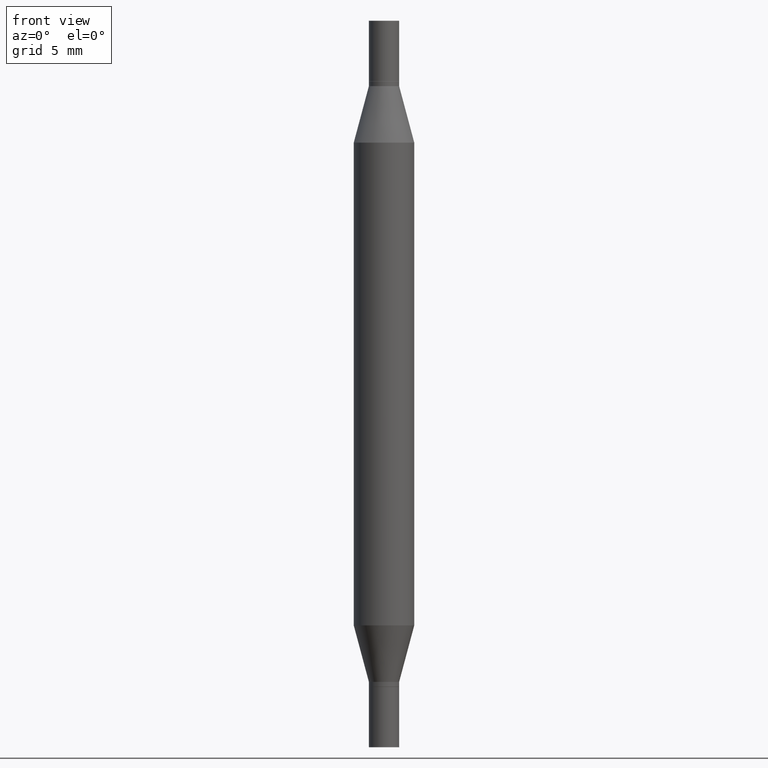
[diagram: clean part render]
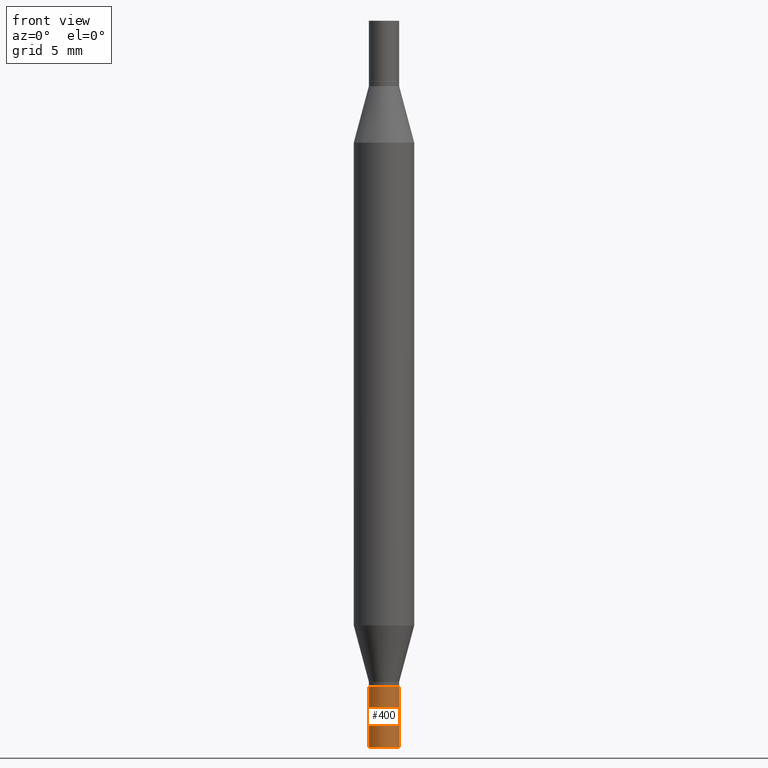
[diagram: same view with one face highlighted and labeled with its STEP entity id]
A machine part, front view. The second image highlights one B-rep face of the part: STEP entity #400.
In plain terms, the highlighted cylindrical surface (edge-blend (fillet) strip) has radius 0.7937 mm, axis along (-0, 0, 1).
Its self-contained STEP definition (entity closure, byte-faithful):
#23 = EDGE_CURVE ( 'NONE', #701, #216, #132, .T. ) ;
#49 = LINE ( 'NONE', #344, #579 ) ;
#132 = CIRCLE ( 'NONE', #399, 0.03125000000000000000 ) ;
#161 = CARTESIAN_POINT ( 'NONE',  ( 0.000000000000000000, 0.000000000000000000, 0.000000000000000000 ) ) ;
#167 = DIRECTION ( 'NONE',  ( -2.445468806185136597E-29, 3.491481338843145583E-15, 1.000000000000000000 ) ) ;
#203 = CARTESIAN_POINT ( 'NONE',  ( 0.03125000000000000000, -5.455439591942414011E-15, -1.500000000000000222 ) ) ;
#204 = FACE_OUTER_BOUND ( 'NONE', #781, .T. ) ;
#216 = VERTEX_POINT ( 'NONE', #946 ) ;
#255 = EDGE_CURVE ( 'NONE', #338, #701, #49, .T. ) ;
#262 = EDGE_CURVE ( 'NONE', #760, #216, #650, .T. ) ;
#297 = EDGE_CURVE ( 'NONE', #338, #760, #516, .T. ) ;
#338 = VERTEX_POINT ( 'NONE', #846 ) ;
#344 = CARTESIAN_POINT ( 'NONE',  ( -0.03125000000000000000, 2.220446049250313081E-16, -1.537167215704658057E-30 ) ) ;
#383 = DIRECTION ( 'NONE',  ( 1.000000000000000000, -6.982962677686266711E-15, 4.876176775795935793E-29 ) ) ;
#399 = AXIS2_PLACEMENT_3D ( 'NONE', #861, #167, #776 ) ;
#400 = ADVANCED_FACE ( 'NONE', ( #204 ), #458, .T. ) ;
#449 = VECTOR ( 'NONE', #815, 39.37007874015748143 ) ;
#458 = CYLINDRICAL_SURFACE ( 'NONE', #790, 0.03125000000000000000 ) ;
#516 = CIRCLE ( 'NONE', #545, 0.03125000000000000000 ) ;
#526 = DIRECTION ( 'NONE',  ( 1.000000000000000000, -6.982962677686262766E-15, 0.000000000000000000 ) ) ;
#534 = DIRECTION ( 'NONE',  ( -2.445468806185136597E-29, 3.491481338843145583E-15, 1.000000000000000000 ) ) ;
#538 = CARTESIAN_POINT ( 'NONE',  ( 3.668203209277704895E-29, -5.237222008264718177E-15, -1.500000000000000222 ) ) ;
#545 = AXIS2_PLACEMENT_3D ( 'NONE', #538, #534, #526 ) ;
#564 = ORIENTED_EDGE ( 'NONE', *, *, #262, .T. ) ;
#579 = VECTOR ( 'NONE', #741, 39.37007874015748143 ) ;
#589 = CARTESIAN_POINT ( 'NONE',  ( -0.03125000000000000000, -4.796959819661991034E-15, -1.375000000000000222 ) ) ;
#650 = LINE ( 'NONE', #738, #449 ) ;
#701 = VERTEX_POINT ( 'NONE', #589 ) ;
#723 = ORIENTED_EDGE ( 'NONE', *, *, #255, .F. ) ;
#738 = CARTESIAN_POINT ( 'NONE',  ( 0.03125000000000000000, -2.182175836776958347E-16, 1.523805242436229935E-30 ) ) ;
#739 = ORIENTED_EDGE ( 'NONE', *, *, #23, .F. ) ;
#741 = DIRECTION ( 'NONE',  ( -2.445468806185136877E-29, 3.491481338843145188E-15, 1.000000000000000000 ) ) ;
#760 = VERTEX_POINT ( 'NONE', #203 ) ;
#767 = DIRECTION ( 'NONE',  ( -2.445468806185136597E-29, 3.491481338843145583E-15, 1.000000000000000000 ) ) ;
#776 = DIRECTION ( 'NONE',  ( 1.000000000000000000, -6.982962677686262766E-15, 0.000000000000000000 ) ) ;
#781 = EDGE_LOOP ( 'NONE', ( #723, #933, #564, #739 ) ) ;
#790 = AXIS2_PLACEMENT_3D ( 'NONE', #161, #767, #383 ) ;
#815 = DIRECTION ( 'NONE',  ( -2.445468806185136877E-29, 3.491481338843145188E-15, 1.000000000000000000 ) ) ;
#846 = CARTESIAN_POINT ( 'NONE',  ( -0.03125000000000000000, -4.796959819661991034E-15, -1.500000000000000222 ) ) ;
#861 = CARTESIAN_POINT ( 'NONE',  ( 3.362519608504562821E-29, -4.800786840909326507E-15, -1.375000000000000222 ) ) ;
#933 = ORIENTED_EDGE ( 'NONE', *, *, #297, .T. ) ;
#946 = CARTESIAN_POINT ( 'NONE',  ( 0.03125000000000000000, -5.019004424587021553E-15, -1.375000000000000222 ) ) ;